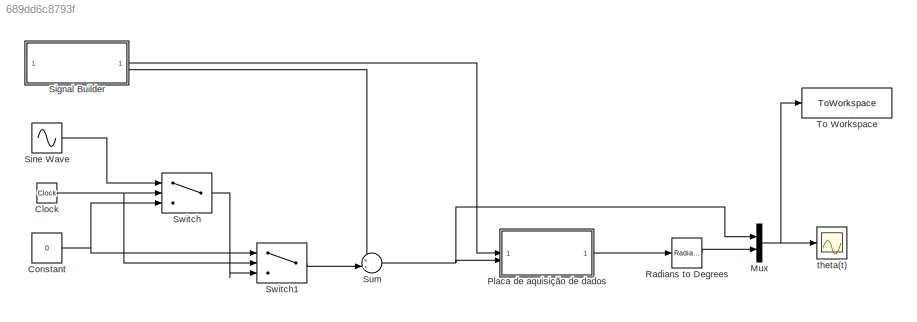
MODEL mdl_689dd6c8793f
KIND model
CONFIG AbsTol = auto
CONFIG EnableMultiTasking = off
CONFIG FixedStep = 0.001
CONFIG MaxStep = auto
CONFIG MinStep = auto
CONFIG RelTol = 1e-3
CONFIG SampleTimeConstraint = Unconstrained
CONFIG SolverName = ode4
CONFIG StartTime = 0.0
CONFIG StopTime = 240
BLOCK [Clock] Clock
BLOCK [Constant] Constant
  Value = 0
BLOCK [Mux] Mux
  DisplayOption = bar
  Inputs = 2
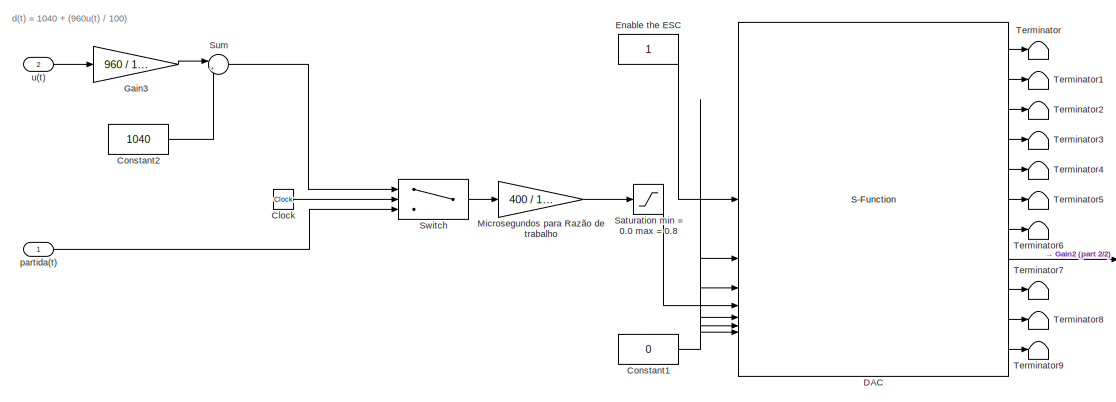
[diagram: Placa de aquisição de dados - part 1/2, left side, full height]
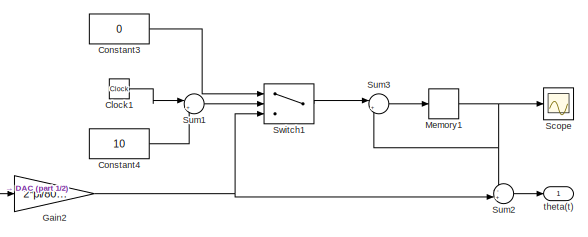
[diagram: Placa de aquisição de dados - part 2/2, middle right region]
BLOCK [SubSystem] Placa de aquisição de dados
BLOCK [Clock] Placa de aquisição de dados/Clock
BLOCK [Clock] Placa de aquisição de dados/Clock1
BLOCK [Constant] Placa de aquisição de dados/Constant1
  Value = 0
BLOCK [Constant] Placa de aquisição de dados/Constant2
  Value = 1040
BLOCK [Constant] Placa de aquisição de dados/Constant3
  Value = 0
BLOCK [Constant] Placa de aquisição de dados/Constant4
  Value = 10
BLOCK [S-Function] Placa de aquisição de dados/DAC
  EnableBusSupport = off
  FunctionName = dacSfunction
  Parameters = serialPort,sampleTime,gpioOutCh1FinalState,gpioOutCh2FinalState,gpioOutCh3FinalState,pwmFrequency,pwmCh1FinalDuty,pwmCh2FinalDuty,pwmCh3FinalDuty,pwmCh4FinalDuty,enc1Mode,enc1ResetCount,enc1Direction,enc1Quadrature,enc1Filter,enc2Mode,enc2ResetCount,enc2Direction,enc2Quadrature,enc2Filter,enc3Mode,enc3ResetCount,enc3Direction,enc3Quadrature,enc3Filter
  SFcnIsStateOwnerBlock = off
  SFunctionDeploymentMode = off
BLOCK [Constant] Placa de aquisição de dados/Enable the ESC
BLOCK [Gain] Placa de aquisição de dados/Gain2
  Gain = 2*pi/8000
BLOCK [Gain] Placa de aquisição de dados/Gain3
  Gain = 960 / 100
BLOCK [Memory] Placa de aquisição de dados/Memory1
BLOCK [Gain] Placa de aquisição de dados/Microsegundos para Razão de trabalho
  Gain = 400 / 1e6
BLOCK [Saturate] Placa de aquisição de dados/Saturation min = 0.0 max = 0.8
  LowerLimit = 0.0
  UpperLimit = 0.8
BLOCK [Scope] Placa de aquisição de dados/Scope
  Floating = off
  NumInputPorts = 1
  ScopeSpecificationString = C++SS(StrPVP('Location','[-847, 624, -523, 863]'),StrPVP('Open','off'),MxPVP('AxesTitles',54,'struct(''axes1'',''%<SignalLabel>'')'),MxPVP('ScopeGraphics',57,'struct(''FigureColor'',''[0.5 0.5 0.5]'',''AxesColor'',''[0 0 0]'',''AxesTickColor'',''[1 1 1]'',''LineColors'',''[1 1 0;1 0 1;0 1 1;1 0 0;0 1 0;0 0 1]'',''LineStyles'',''-|-|-|-|-|-'',''LineWidths'',''[0.5 0.5 0.5 0.5 0.5 0.5]'',''MarkerSty...<+262ch>
BLOCK [Sum] Placa de aquisição de dados/Sum
  Inputs = |++
BLOCK [Sum] Placa de aquisição de dados/Sum1
  Inputs = |+-
BLOCK [Sum] Placa de aquisição de dados/Sum2
  Inputs = -+|
BLOCK [Sum] Placa de aquisição de dados/Sum3
  Inputs = |++
BLOCK [Switch] Placa de aquisição de dados/Switch
  InputSameDT = off
  SaturateOnIntegerOverflow = off
  Threshold = 10
BLOCK [Switch] Placa de aquisição de dados/Switch1
  Criteria = u2 ~= 0
  InputSameDT = off
  SaturateOnIntegerOverflow = off
BLOCK [Terminator] Placa de aquisição de dados/Terminator
BLOCK [Terminator] Placa de aquisição de dados/Terminator1
BLOCK [Terminator] Placa de aquisição de dados/Terminator2
BLOCK [Terminator] Placa de aquisição de dados/Terminator3
BLOCK [Terminator] Placa de aquisição de dados/Terminator4
BLOCK [Terminator] Placa de aquisição de dados/Terminator5
BLOCK [Terminator] Placa de aquisição de dados/Terminator6
BLOCK [Terminator] Placa de aquisição de dados/Terminator7
BLOCK [Terminator] Placa de aquisição de dados/Terminator8
BLOCK [Terminator] Placa de aquisição de dados/Terminator9
BLOCK [Inport] Placa de aquisição de dados/partida(t)
BLOCK [Outport] Placa de aquisição de dados/theta(t)
  VectorParamsAs1DForOutWhenUnconnected = off
BLOCK [Inport] Placa de aquisição de dados/u(t)
  Port = 2
BLOCK [Reference] Radians to Degrees  REF=simulink_extras/Transformations/Radians
to Degrees
  SourceBlock = simulink_extras/Transformations/Radians\nto Degrees
  SourceType = RadiansToDegrees
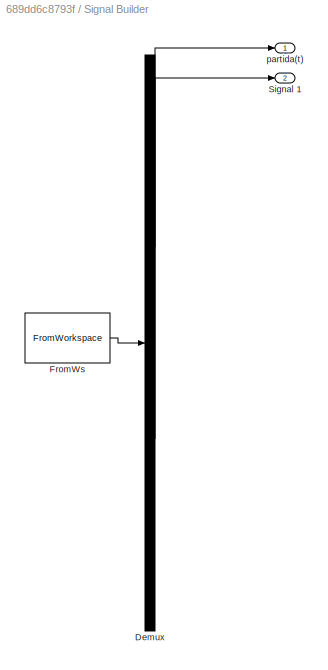
BLOCK [SubSystem] Signal Builder
  ClipboardFcn = sigbuilder_block('clipboard');
  CloseFcn = sigbuilder_block('close');
  ContinueFcn = sigbuilder_block('continue');
  CopyFcn = sigbuilder_block('copy');
  DeleteFcn = sigbuilder_block('delete');
  LoadFcn = sigbuilder_block('load',[5.4 36 1141.2 516.6 ]);
  MaskHideContents = on
  ModelCloseFcn = sigbuilder_block('modelClose');
  NameChangeFcn = sigbuilder_block('namechange');
  OpenFcn = sigbuilder_block('open',[5.4 36 1141.2 516.6 ]);
  PauseFcn = sigbuilder_block('pause');
  PreSaveFcn = sigbuilder_block('preSave');
  StartFcn = sigbuilder_block('start');
  StopFcn = sigbuilder_block('stop');
  Tag = STV Subsys
BLOCK [Demux] Signal Builder/Demux
  DisplayOption = none
  Outputs = 2
  Tag = STV Demux
BLOCK [FromWorkspace] Signal Builder/FromWs
  Tag = STV FromWs
  VariableName = tuvar
BLOCK [Outport] Signal Builder/Signal 1
  Port = 2
  Tag = STV Outport
  VectorParamsAs1DForOutWhenUnconnected = off
BLOCK [Outport] Signal Builder/partida(t)
  Tag = STV Outport
  VectorParamsAs1DForOutWhenUnconnected = off
BLOCK [Sin] Sine Wave
  Amplitude = 5
  Frequency = 0.6
  SampleTime = 0
BLOCK [Sum] Sum
  Inputs = ++|
BLOCK [Switch] Switch
  Criteria = u2 > Threshold
  InputSameDT = off
  SaturateOnIntegerOverflow = off
  Threshold = 20
BLOCK [Switch] Switch1
  Criteria = u2 > Threshold
  InputSameDT = off
  SaturateOnIntegerOverflow = off
  Threshold = 230
BLOCK [ToWorkspace] To Workspace
  FixptAsFi = on
  MaxDataPoints = inf
  SampleTime = -1
  SaveFormat = Timeseries
  VariableName = simout
BLOCK [Scope] theta(t)
  Floating = off
  NumInputPorts = 1
  ScopeSpecificationString = Simulink.scopes.TimeScopeBlockCfg('CurrentConfiguration', extmgr.ConfigurationSet(extmgr.Configuration('Core','General UI',true),extmgr.Configuration('Core','Source UI',true),extmgr.Configuration('Sources','WiredSimulink',true,'DataLoggingVariableName','ScopeData1','DataLoggingSaveFormat','Array','DataLoggingDecimation','1','DataLoggingDecimateData',true),extmgr.Configuration('Visuals','Time Domai...<+1780ch>
ANNOTATION Placa de aquisição de dados: d(t) = 1040 + (960u(t) / 100)
NET Clock:1 -> Switch1:2, Switch:2
NET Constant:1 -> Switch1:1, Switch:3
NET Mux:1 -> To Workspace:1, theta(t):1
LINE Placa de aquisição de dados/Clock1:1 -> Placa de aquisição de dados/Sum1:1
LINE Placa de aquisição de dados/Clock:1 -> Placa de aquisição de dados/Switch:2
NET Placa de aquisição de dados/Constant1:1 -> Placa de aquisição de dados/DAC:2, Placa de aquisição de dados/DAC:3, Placa de aquisição de dados/DAC:5, Placa de aquisição de dados/DAC:6, Placa de aquisição de dados/DAC:7
LINE Placa de aquisição de dados/Constant2:1 -> Placa de aquisição de dados/Sum:2
LINE Placa de aquisição de dados/Constant3:1 -> Placa de aquisição de dados/Switch1:1
LINE Placa de aquisição de dados/Constant4:1 -> Placa de aquisição de dados/Sum1:2
LINE Placa de aquisição de dados/DAC:1 -> Placa de aquisição de dados/Terminator:1
LINE Placa de aquisição de dados/DAC:10 -> Placa de aquisição de dados/Terminator8:1
LINE Placa de aquisição de dados/DAC:11 -> Placa de aquisição de dados/Terminator9:1
LINE Placa de aquisição de dados/DAC:2 -> Placa de aquisição de dados/Terminator1:1
LINE Placa de aquisição de dados/DAC:3 -> Placa de aquisição de dados/Terminator2:1
LINE Placa de aquisição de dados/DAC:4 -> Placa de aquisição de dados/Terminator3:1
LINE Placa de aquisição de dados/DAC:5 -> Placa de aquisição de dados/Terminator4:1
LINE Placa de aquisição de dados/DAC:6 -> Placa de aquisição de dados/Terminator5:1
LINE Placa de aquisição de dados/DAC:7 -> Placa de aquisição de dados/Terminator6:1
LINE Placa de aquisição de dados/DAC:8 -> Placa de aquisição de dados/Gain2:1
LINE Placa de aquisição de dados/DAC:9 -> Placa de aquisição de dados/Terminator7:1
LINE Placa de aquisição de dados/Enable the ESC:1 -> Placa de aquisição de dados/DAC:1
NET Placa de aquisição de dados/Gain2:1 -> Placa de aquisição de dados/Sum2:2, Placa de aquisição de dados/Switch1:3
LINE Placa de aquisição de dados/Gain3:1 -> Placa de aquisição de dados/Sum:1
NET Placa de aquisição de dados/Memory1:1 -> Placa de aquisição de dados/Scope:1, Placa de aquisição de dados/Sum2:1, Placa de aquisição de dados/Sum3:2
LINE Placa de aquisição de dados/Microsegundos para Razão de trabalho:1 -> Placa de aquisição de dados/Saturation min = 0.0 max = 0.8:1
LINE Placa de aquisição de dados/Saturation min = 0.0 max = 0.8:1 -> Placa de aquisição de dados/DAC:4
LINE Placa de aquisição de dados/Sum1:1 -> Placa de aquisição de dados/Switch1:2
LINE Placa de aquisição de dados/Sum2:1 -> Placa de aquisição de dados/theta(t):1
LINE Placa de aquisição de dados/Sum3:1 -> Placa de aquisição de dados/Memory1:1
LINE Placa de aquisição de dados/Sum:1 -> Placa de aquisição de dados/Switch:1
LINE Placa de aquisição de dados/Switch1:1 -> Placa de aquisição de dados/Sum3:1
LINE Placa de aquisição de dados/Switch:1 -> Placa de aquisição de dados/Microsegundos para Razão de trabalho:1
LINE Placa de aquisição de dados/partida(t):1 -> Placa de aquisição de dados/Switch:3
LINE Placa de aquisição de dados/u(t):1 -> Placa de aquisição de dados/Gain3:1
LINE Placa de aquisição de dados:1 -> Radians to Degrees:1
LINE Radians to Degrees:1 -> Mux:2
LINE Signal Builder:1 -> Placa de aquisição de dados:1
LINE Signal Builder:2 -> Sum:1
LINE Sine Wave:1 -> Switch:1
NET Sum:1 -> Mux:1, Placa de aquisição de dados:2
LINE Switch1:1 -> Sum:2
LINE Switch:1 -> Switch1:3
note: NET lines group one-source signal fan-out (src -> all destinations, sorted); 1:1 wires keep LINE
